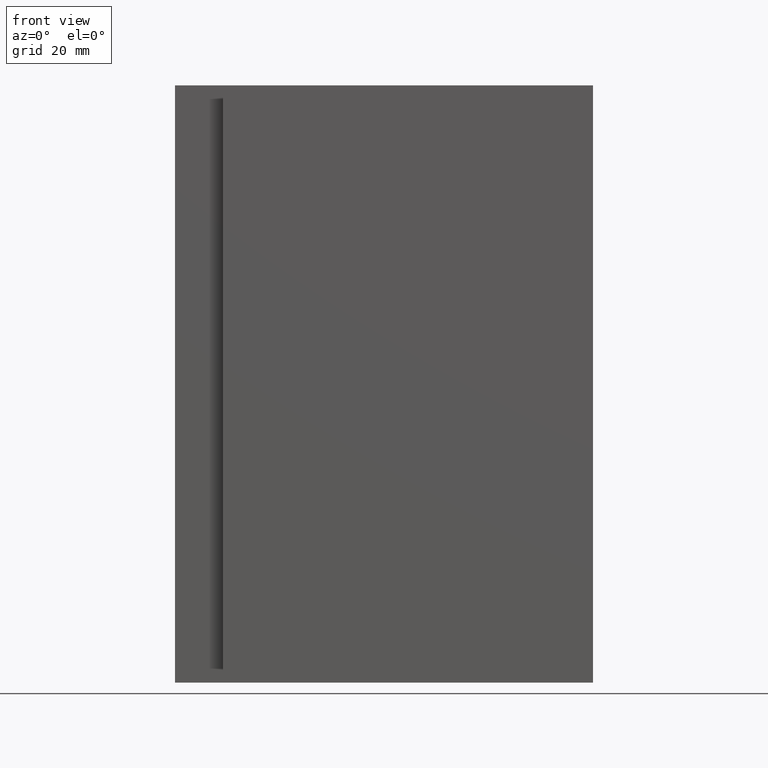
[diagram: clean part render]
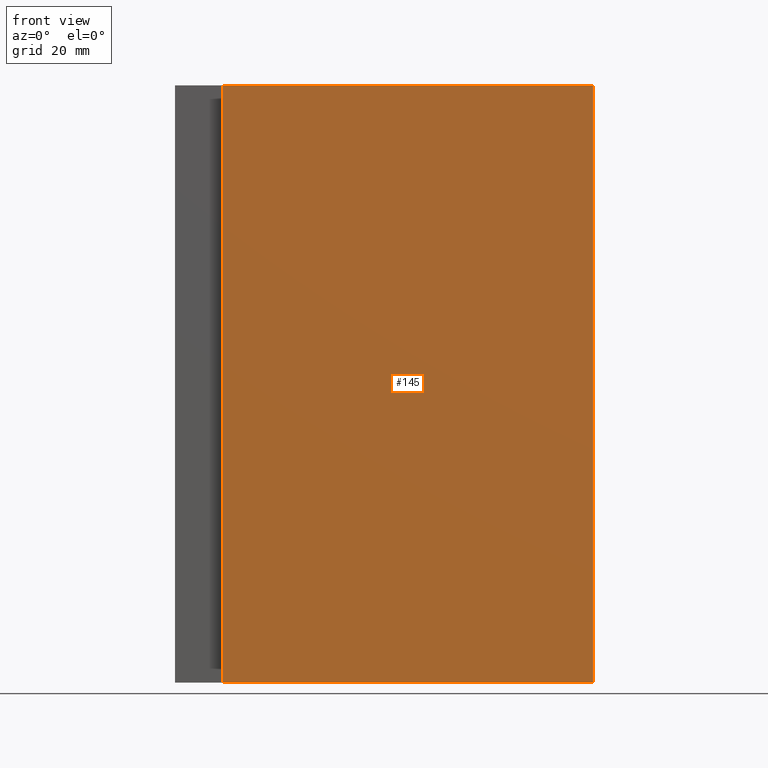
[diagram: same view with one face highlighted and labeled with its STEP entity id]
A machine part, front view. The second image highlights one B-rep face of the part: STEP entity #145.
In plain terms, the highlighted planar face has unit normal (0, -1, 0).
Its self-contained STEP definition (entity closure, byte-faithful):
#19=FACE_OUTER_BOUND('',#27,.T.);
#27=EDGE_LOOP('',(#113,#114,#115,#116));
#43=LINE('',#234,#61);
#44=LINE('',#237,#62);
#45=LINE('',#239,#63);
#46=LINE('',#240,#64);
#61=VECTOR('',#193,10.);
#62=VECTOR('',#196,10.);
#63=VECTOR('',#197,10.);
#64=VECTOR('',#198,10.);
#75=VERTEX_POINT('',#230);
#76=VERTEX_POINT('',#232);
#77=VERTEX_POINT('',#236);
#78=VERTEX_POINT('',#238);
#91=EDGE_CURVE('',#75,#76,#43,.T.);
#92=EDGE_CURVE('',#77,#75,#44,.T.);
#93=EDGE_CURVE('',#78,#76,#45,.T.);
#94=EDGE_CURVE('',#77,#78,#46,.T.);
#113=ORIENTED_EDGE('',*,*,#92,.T.);
#114=ORIENTED_EDGE('',*,*,#91,.T.);
#115=ORIENTED_EDGE('',*,*,#93,.F.);
#116=ORIENTED_EDGE('',*,*,#94,.F.);
#137=PLANE('',#167);
#145=ADVANCED_FACE('',(#19),#137,.T.);
#167=AXIS2_PLACEMENT_3D('',#235,#194,#195);
#193=DIRECTION('',(0.,0.,1.));
#194=DIRECTION('center_axis',(1.55227784985289E-16,-1.,0.));
#195=DIRECTION('ref_axis',(1.,1.55227784985289E-16,0.));
#196=DIRECTION('',(1.,1.55227784985289E-16,0.));
#197=DIRECTION('',(1.,1.55227784985289E-16,0.));
#198=DIRECTION('',(0.,0.,1.));
#230=CARTESIAN_POINT('',(62.,1.11022302462516E-14,0.));
#232=CARTESIAN_POINT('',(62.,1.11022302462516E-14,200.));
#234=CARTESIAN_POINT('',(62.,1.11022302462516E-14,0.));
#235=CARTESIAN_POINT('Origin',(-62.,-8.14601509192424E-15,0.));
#236=CARTESIAN_POINT('',(-62.,-8.88178419700125E-15,0.));
#237=CARTESIAN_POINT('',(-62.,-8.14601509192424E-15,0.));
#238=CARTESIAN_POINT('',(-62.,-8.88178419700125E-15,200.));
#239=CARTESIAN_POINT('',(-62.,-8.14601509192424E-15,200.));
#240=CARTESIAN_POINT('',(-62.,-8.88178419700125E-15,0.));